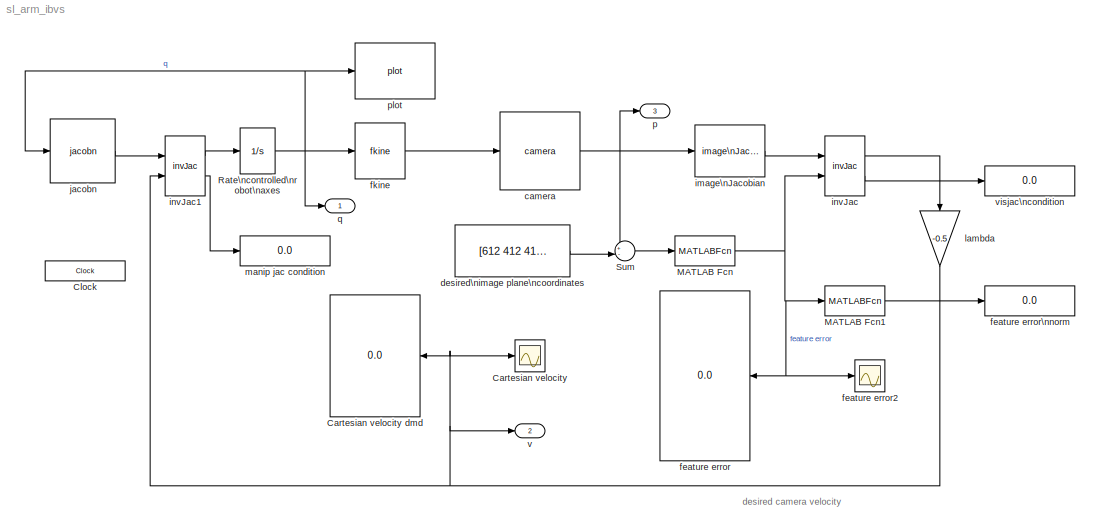
MODEL sl_arm_ibvs
KIND model
CONFIG InitFcn = mdl_puma560\ncamera = CentralCamera('default');\nP = mkgrid(2, 0.5, troty(pi/2)*transl(0,0,2.5));\nq0 = [0 pi/4 pi 0 pi/4 -pi/4]';
BLOCK [Scope] Cartesian velocity
  DataFormat = StructureWithTime
  Floating = off
  NumInputPorts = 1
  Ports = [1]
  SID = 31
  SampleTime = 0
  TimeRange = 20
  YMax = 1.9
  YMin = -0.4
  ZoomMode = yonly
BLOCK [Display] Cartesian velocity dmd
  Decimation = 1
  Format = bank
  Lockdown = off
  Ports = [1]
  SID = 32
BLOCK [Clock] Clock
  Decimation = 10
  DisplayTime = on
  SID = 48
BLOCK [MATLABFcn] MATLAB Fcn
  MATLABFcn = u(:)
  Output1D = off
  Ports = [1, 1]
  SID = 33
BLOCK [MATLABFcn] MATLAB Fcn1
  MATLABFcn = norm(u)
  Ports = [1, 1]
  SID = 34
BLOCK [Integrator] Rate\ncontrolled\nrobot\naxes
  InitialCondition = q0
  Ports = [1, 1]
  SID = 9
BLOCK [Sum] Sum
  IconShape = round
  Inputs = +-|
  Ports = [2, 1]
  SID = 35
BLOCK [Reference] camera  REF=roblocks/Vision/camera  (lib defined in mdl_2a292b13c81b, mdl_69400f8cfe22, +12 more)
  FunctionWithSeparateData = off
  GeneratePreprocessorConditionals = off
  Ports = [1, 1]
  RTWMemSecDataConstants = Inherit from model
  RTWMemSecDataInternal = Inherit from model
  RTWMemSecDataParameters = Inherit from model
  RTWMemSecFuncExecute = Inherit from model
  RTWMemSecFuncInitTerm = Inherit from model
  SID = 36
  ShowPortLabels = FromPortIcon
  SourceBlock = roblocks/Vision/camera
  SystemSampleTime = -1
  cam = camera
  points = P
BLOCK [Constant] desired\nimage plane\ncoordinates
  SID = 37
  Value = [612 412 412 612; 412 412 612 612]
  VectorParams1D = off
BLOCK [Display] feature error
  Decimation = 1
  Format = bank
  Lockdown = off
  Ports = [1]
  SID = 38
BLOCK [Scope] feature error2
  DataFormat = StructureWithTime
  Floating = off
  NumInputPorts = 1
  Ports = [1]
  SID = 40
  SampleTime = 0
  SaveName = ScopeData1
  TimeRange = 20
  YMax = 150
  YMin = -150
  ZoomMode = yonly
BLOCK [Display] feature error\nnorm
  Decimation = 1
  Lockdown = off
  Ports = [1]
  SID = 39
BLOCK [Reference] fkine  REF=roblocks/Kinematics/fkine  (lib defined in mdl_2a292b13c81b, mdl_69400f8cfe22, +12 more)
  FunctionWithSeparateData = off
  GeneratePreprocessorConditionals = off
  Ports = [1, 1]
  RTWMemSecDataConstants = Inherit from model
  RTWMemSecDataInternal = Inherit from model
  RTWMemSecDataParameters = Inherit from model
  RTWMemSecFuncExecute = Inherit from model
  RTWMemSecFuncInitTerm = Inherit from model
  SID = 20
  ShowPortLabels = FromPortIcon
  SourceBlock = roblocks/Kinematics/fkine
  SystemSampleTime = -1
  robot = p560
BLOCK [Reference] image\nJacobian  REF=roblocks/Vision/image\nJacobian  (lib defined in mdl_2a292b13c81b, mdl_69400f8cfe22, +12 more)
  FunctionWithSeparateData = off
  GeneratePreprocessorConditionals = off
  Ports = [1, 1]
  RTWMemSecDataConstants = Inherit from model
  RTWMemSecDataInternal = Inherit from model
  RTWMemSecDataParameters = Inherit from model
  RTWMemSecFuncExecute = Inherit from model
  RTWMemSecFuncInitTerm = Inherit from model
  SID = 55
  ShowPortLabels = FromPortIcon
  SourceBlock = roblocks/Vision/image\nJacobian
  SystemSampleTime = -1
  cam = camera
  z = 2
BLOCK [Reference] invJac  REF=roblocks/Vision/invJac  (lib defined in mdl_2a292b13c81b, mdl_69400f8cfe22, +12 more)
  FunctionWithSeparateData = off
  GeneratePreprocessorConditionals = off
  Ports = [2, 2]
  RTWMemSecDataConstants = Inherit from model
  RTWMemSecDataInternal = Inherit from model
  RTWMemSecDataParameters = Inherit from model
  RTWMemSecFuncExecute = Inherit from model
  RTWMemSecFuncInitTerm = Inherit from model
  SID = 41
  ShowPortLabels = FromPortIcon
  SourceBlock = roblocks/Vision/invJac
  SourceType = SubSystem
  SystemSampleTime = -1
BLOCK [Reference] invJac1  REF=roblocks/Vision/invJac  (lib defined in mdl_2a292b13c81b, mdl_69400f8cfe22, +12 more)
  FunctionWithSeparateData = off
  GeneratePreprocessorConditionals = off
  Ports = [2, 2]
  RTWMemSecDataConstants = Inherit from model
  RTWMemSecDataInternal = Inherit from model
  RTWMemSecDataParameters = Inherit from model
  RTWMemSecFuncExecute = Inherit from model
  RTWMemSecFuncInitTerm = Inherit from model
  SID = 49
  ShowPortLabels = FromPortIcon
  SourceBlock = roblocks/Vision/invJac
  SourceType = SubSystem
  SystemSampleTime = -1
BLOCK [Reference] jacobn  REF=roblocks/Kinematics/jacobn  (lib defined in mdl_2a292b13c81b, mdl_69400f8cfe22, +12 more)
  FunctionWithSeparateData = off
  GeneratePreprocessorConditionals = off
  Ports = [1, 1]
  RTWMemSecDataConstants = Inherit from model
  RTWMemSecDataInternal = Inherit from model
  RTWMemSecDataParameters = Inherit from model
  RTWMemSecFuncExecute = Inherit from model
  RTWMemSecFuncInitTerm = Inherit from model
  SID = 22
  ShowPortLabels = FromPortIcon
  SourceBlock = roblocks/Kinematics/jacobn
  SystemSampleTime = -1
  robot = p560
BLOCK [Gain] lambda
  Gain = -0.5
  SID = 42
BLOCK [Display] manip jac condition
  Decimation = 1
  Lockdown = off
  Ports = [1]
  SID = 50
BLOCK [Outport] p
  IconDisplay = Port number
  Port = 3
  SID = 53
BLOCK [Reference] plot  REF=roblocks/Robot Graphics/plot  (lib defined in mdl_2a292b13c81b, mdl_69400f8cfe22, +12 more)
  FunctionWithSeparateData = off
  GeneratePreprocessorConditionals = off
  Ports = [1]
  RTWMemSecDataConstants = Inherit from model
  RTWMemSecDataInternal = Inherit from model
  RTWMemSecDataParameters = Inherit from model
  RTWMemSecFuncExecute = Inherit from model
  RTWMemSecFuncInitTerm = Inherit from model
  SID = 54
  ShowPortLabels = FromPortIcon
  SourceBlock = roblocks/Robot Graphics/plot
  SystemSampleTime = -1
  robot = p560
BLOCK [Outport] q
  IconDisplay = Port number
  SID = 51
BLOCK [Outport] v
  IconDisplay = Port number
  Port = 2
  SID = 52
BLOCK [Display] visjac\ncondition
  Decimation = 1
  Lockdown = off
  Ports = [1]
  SID = 44
ANNOTATION (root): desired camera velocity
LINE MATLAB Fcn1:1 -> feature error\nnorm:1
NET MATLAB Fcn:1 -> MATLAB Fcn1:1, feature error2:1, feature error:1, invJac:2
NET Rate\ncontrolled\nrobot\naxes:1 -> fkine:1, jacobn:1, plot:1, q:1
LINE Sum:1 -> MATLAB Fcn:1
NET camera:1 -> Sum:1, image\nJacobian:1, p:1
LINE desired\nimage plane\ncoordinates:1 -> Sum:2
LINE fkine:1 -> camera:1
LINE image\nJacobian:1 -> invJac:1
LINE invJac1:1 -> Rate\ncontrolled\nrobot\naxes:1
LINE invJac1:2 -> manip jac condition:1
LINE invJac:1 -> lambda:1
LINE invJac:2 -> visjac\ncondition:1
LINE jacobn:1 -> invJac1:1
NET lambda:1 -> Cartesian velocity dmd:1, Cartesian velocity:1, invJac1:2, v:1
note: NET lines group one-source signal fan-out (src -> all destinations, sorted); 1:1 wires keep LINE
